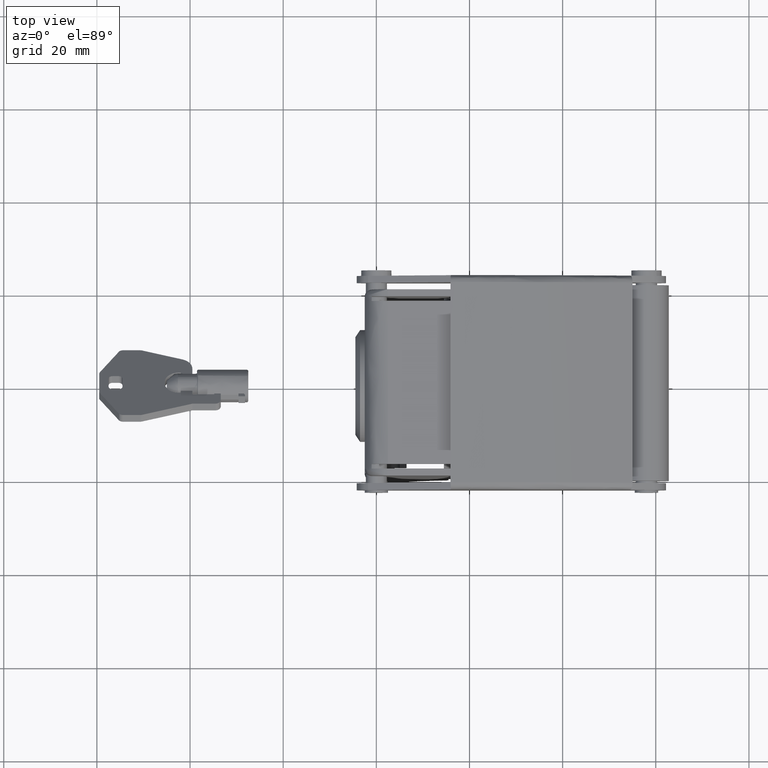
[diagram: clean part render]
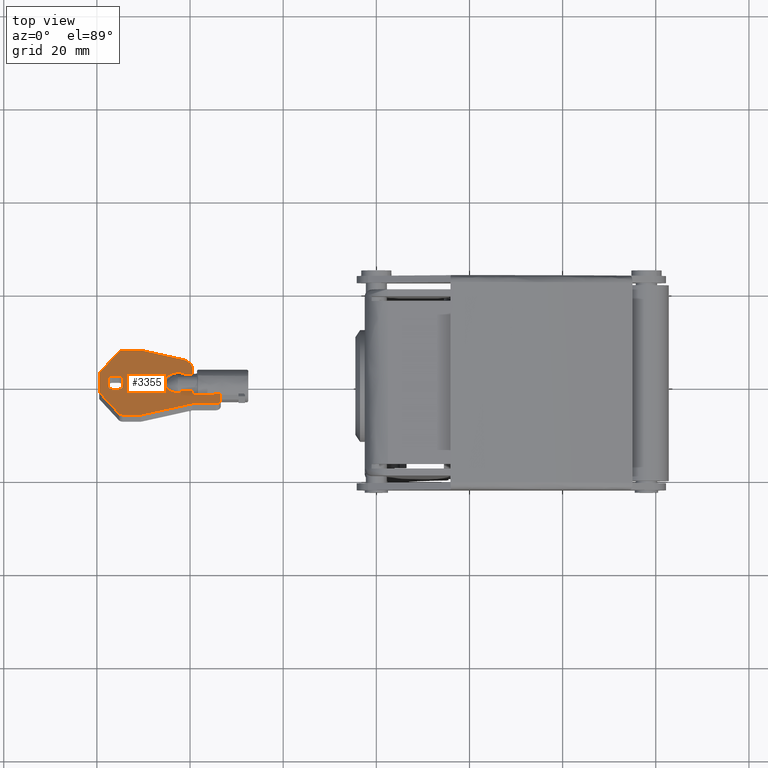
[diagram: same view with one face highlighted and labeled with its STEP entity id]
A machine part, top view. The second image highlights one B-rep face of the part: STEP entity #3355.
In plain terms, the highlighted face is a freeform B-spline surface patch.
Its self-contained STEP definition (entity closure, byte-faithful):
#1591=CARTESIAN_POINT('',(-41.997997487522753,2.480520734108946,-35.366299757103349));
#1592=VERTEX_POINT('',#1591);
#1593=CARTESIAN_POINT('',(-39.497997487522703,2.480520734108993,-35.366299757103299));
#1594=VERTEX_POINT('',#1593);
#1595=CARTESIAN_POINT('',(-41.997997487522753,2.480520734108946,-35.366299757103349));
#1596=CARTESIAN_POINT('',(-39.497997487522703,2.480520734108993,-35.366299757103299));
#1597=QUASI_UNIFORM_CURVE('',1,(#1595,#1596),.UNSPECIFIED.,.F.,.U.);
#1598=EDGE_CURVE('',#1592,#1594,#1597,.T.);
#1664=CARTESIAN_POINT('',(-39.497997487522703,-1.066308775221312,-31.819470247773090));
#1665=VERTEX_POINT('',#1664);
#1666=CARTESIAN_POINT('',(-41.997997487522753,-1.066308775221266,-31.819470247773040));
#1667=VERTEX_POINT('',#1666);
#1668=CARTESIAN_POINT('',(-39.497997487522703,-1.066308775221312,-31.819470247773090));
#1669=CARTESIAN_POINT('',(-41.997997487522753,-1.066308775221266,-31.819470247773040));
#1670=QUASI_UNIFORM_CURVE('',1,(#1668,#1669),.UNSPECIFIED.,.F.,.U.);
#1671=EDGE_CURVE('',#1665,#1667,#1670,.T.);
#1782=CARTESIAN_POINT('',(-33.397997487522659,-1.664602224938129,-31.221176798056270));
#1783=VERTEX_POINT('',#1782);
#1784=CARTESIAN_POINT('',(-34.797997487522700,-1.664602224938129,-31.221176798056270));
#1785=VERTEX_POINT('',#1784);
#1786=CARTESIAN_POINT('',(-33.397997487522659,-1.664602224938129,-31.221176798056270));
#1787=CARTESIAN_POINT('',(-34.797997487522700,-1.664602224938129,-31.221176798056270));
#1788=QUASI_UNIFORM_CURVE('',1,(#1786,#1787),.UNSPECIFIED.,.F.,.U.);
#1789=EDGE_CURVE('',#1783,#1785,#1788,.T.);
#2265=CARTESIAN_POINT('',(-57.497997487522753,1.555634102437374,-34.441413125431772));
#2266=VERTEX_POINT('',#2265);
#2267=CARTESIAN_POINT('',(-56.697997487522763,2.121319517705285,-35.007098540699737));
#2268=VERTEX_POINT('',#2267);
#2269=CARTESIAN_POINT('',(-57.497997487522760,1.555634102437374,-34.441413125431772));
#2270=CARTESIAN_POINT('',(-57.497997487522767,2.121319517705317,-35.007098540699715));
#2271=CARTESIAN_POINT('',(-56.697997487522763,2.121319517705317,-35.007098540699722));
#2279=(BOUNDED_CURVE()B_SPLINE_CURVE(2,(#2269,#2270,#2271),.UNSPECIFIED.,.F.,.U.)CURVE()GEOMETRIC_REPRESENTATION_ITEM()QUASI_UNIFORM_CURVE()RATIONAL_B_SPLINE_CURVE((1.0,0.707106781186548,1.0))REPRESENTATION_ITEM(''));
#2280=EDGE_CURVE('',#2266,#2268,#2279,.T.);
#2301=CARTESIAN_POINT('',(-57.497997487522753,-0.141422143366427,-32.744356879627972));
#2302=VERTEX_POINT('',#2301);
#2303=CARTESIAN_POINT('',(-57.497997487522753,-0.141422143366427,-32.744356879627972));
#2304=CARTESIAN_POINT('',(-57.497997487522753,1.555634102437374,-34.441413125431772));
#2305=QUASI_UNIFORM_CURVE('',1,(#2303,#2304),.UNSPECIFIED.,.F.,.U.);
#2306=EDGE_CURVE('',#2302,#2266,#2305,.T.);
#2332=CARTESIAN_POINT('',(-56.697997487522763,-0.707107558634366,-32.178671464360043));
#2333=VERTEX_POINT('',#2332);
#2334=CARTESIAN_POINT('',(-56.697997487522763,-0.707107558634370,-32.178671464360029));
#2335=CARTESIAN_POINT('',(-57.497997487522767,-0.707107558634370,-32.178671464360029));
#2336=CARTESIAN_POINT('',(-57.497997487522760,-0.141422143366427,-32.744356879627972));
#2344=(BOUNDED_CURVE()B_SPLINE_CURVE(2,(#2334,#2335,#2336),.UNSPECIFIED.,.F.,.U.)CURVE()GEOMETRIC_REPRESENTATION_ITEM()QUASI_UNIFORM_CURVE()RATIONAL_B_SPLINE_CURVE((1.0,0.707106781186548,1.0))REPRESENTATION_ITEM(''));
#2345=EDGE_CURVE('',#2333,#2302,#2344,.T.);
#2362=CARTESIAN_POINT('',(-55.297997487522700,-0.707107558634366,-32.178671464360043));
#2363=VERTEX_POINT('',#2362);
#2364=CARTESIAN_POINT('',(-55.297997487522700,-0.707107558634366,-32.178671464360043));
#2365=CARTESIAN_POINT('',(-56.697997487522763,-0.707107558634366,-32.178671464360043));
#2366=QUASI_UNIFORM_CURVE('',1,(#2364,#2365),.UNSPECIFIED.,.F.,.U.);
#2367=EDGE_CURVE('',#2363,#2333,#2366,.T.);
#2393=CARTESIAN_POINT('',(-54.497997487522753,-0.141422143366427,-32.744356879627972));
#2394=VERTEX_POINT('',#2393);
#2395=CARTESIAN_POINT('',(-54.497997487522703,-0.141422143366427,-32.744356879627972));
#2396=CARTESIAN_POINT('',(-54.497997487522689,-0.707107558634370,-32.178671464360029));
#2397=CARTESIAN_POINT('',(-55.297997487522700,-0.707107558634370,-32.178671464360029));
#2405=(BOUNDED_CURVE()B_SPLINE_CURVE(2,(#2395,#2396,#2397),.UNSPECIFIED.,.F.,.U.)CURVE()GEOMETRIC_REPRESENTATION_ITEM()QUASI_UNIFORM_CURVE()RATIONAL_B_SPLINE_CURVE((1.0,0.707106781186548,1.0))REPRESENTATION_ITEM(''));
#2406=EDGE_CURVE('',#2394,#2363,#2405,.T.);
#2423=CARTESIAN_POINT('',(-54.497997487522703,1.555634102437374,-34.441413125431772));
#2424=VERTEX_POINT('',#2423);
#2425=CARTESIAN_POINT('',(-54.497997487522703,1.555634102437374,-34.441413125431772));
#2426=CARTESIAN_POINT('',(-54.497997487522753,-0.141422143366427,-32.744356879627972));
#2427=QUASI_UNIFORM_CURVE('',1,(#2425,#2426),.UNSPECIFIED.,.F.,.U.);
#2428=EDGE_CURVE('',#2424,#2394,#2427,.T.);
#2454=CARTESIAN_POINT('',(-55.297997487522700,2.121319517705317,-35.007098540699722));
#2455=VERTEX_POINT('',#2454);
#2456=CARTESIAN_POINT('',(-55.297997487522700,2.121319517705317,-35.007098540699722));
#2457=CARTESIAN_POINT('',(-54.497997487522689,2.121319517705317,-35.007098540699715));
#2458=CARTESIAN_POINT('',(-54.497997487522703,1.555634102437374,-34.441413125431772));
#2466=(BOUNDED_CURVE()B_SPLINE_CURVE(2,(#2456,#2457,#2458),.UNSPECIFIED.,.F.,.U.)CURVE()GEOMETRIC_REPRESENTATION_ITEM()QUASI_UNIFORM_CURVE()RATIONAL_B_SPLINE_CURVE((1.0,0.707106781186548,1.0))REPRESENTATION_ITEM(''));
#2467=EDGE_CURVE('',#2455,#2424,#2466,.T.);
#2484=CARTESIAN_POINT('',(-56.697997487522763,2.121319517705285,-35.007098540699737));
#2485=CARTESIAN_POINT('',(-55.297997487522700,2.121319517705317,-35.007098540699722));
#2486=QUASI_UNIFORM_CURVE('',1,(#2484,#2485),.UNSPECIFIED.,.F.,.U.);
#2487=EDGE_CURVE('',#2268,#2455,#2486,.T.);
#2500=CARTESIAN_POINT('',(-41.997997487522753,-1.484925004627712,-31.400854018366591));
#2501=VERTEX_POINT('',#2500);
#2502=CARTESIAN_POINT('',(-41.997997487522753,-1.484925004627712,-31.400854018366591));
#2503=CARTESIAN_POINT('',(-41.997997487522753,-1.066308775221266,-31.819470247773040));
#2504=QUASI_UNIFORM_CURVE('',1,(#2502,#2503),.UNSPECIFIED.,.F.,.U.);
#2505=EDGE_CURVE('',#2501,#1667,#2504,.T.);
#2524=CARTESIAN_POINT('',(-41.997997487522753,2.899136963698759,-35.784915986693072));
#2525=VERTEX_POINT('',#2524);
#2526=CARTESIAN_POINT('',(-41.997997487522753,2.480520734108946,-35.366299757103349));
#2527=CARTESIAN_POINT('',(-41.997997487522753,2.899136963698759,-35.784915986693072));
#2528=QUASI_UNIFORM_CURVE('',1,(#2526,#2527),.UNSPECIFIED.,.F.,.U.);
#2529=EDGE_CURVE('',#1592,#2525,#2528,.T.);
#2544=CARTESIAN_POINT('',(-39.497997487522703,3.752152698451376,-36.637931721445682));
#2545=VERTEX_POINT('',#2544);
#2546=CARTESIAN_POINT('',(-39.497997487522703,3.752152698451376,-36.637931721445682));
#2547=CARTESIAN_POINT('',(-39.497997487522703,2.480520734108993,-35.366299757103299));
#2548=QUASI_UNIFORM_CURVE('',1,(#2546,#2547),.UNSPECIFIED.,.F.,.U.);
#2549=EDGE_CURVE('',#2545,#1594,#2548,.T.);
#2568=CARTESIAN_POINT('',(-39.497997487522703,-1.697057035353293,-31.188721987641010));
#2569=VERTEX_POINT('',#2568);
#2570=CARTESIAN_POINT('',(-39.497997487522703,-1.066308775221312,-31.819470247773090));
#2571=CARTESIAN_POINT('',(-39.497997487522703,-1.697057035353293,-31.188721987641010));
#2572=QUASI_UNIFORM_CURVE('',1,(#2570,#2571),.UNSPECIFIED.,.F.,.U.);
#2573=EDGE_CURVE('',#1665,#2569,#2572,.T.);
#2588=CARTESIAN_POINT('',(-34.797997487522700,-1.838478389170241,-31.047300633824069));
#2589=VERTEX_POINT('',#2588);
#2590=CARTESIAN_POINT('',(-34.797997487522700,-1.838478389170241,-31.047300633824069));
#2591=CARTESIAN_POINT('',(-34.797997487522700,-1.664602224938129,-31.221176798056270));
#2592=QUASI_UNIFORM_CURVE('',1,(#2590,#2591),.UNSPECIFIED.,.F.,.U.);
#2593=EDGE_CURVE('',#2589,#1785,#2592,.T.);
#2616=CARTESIAN_POINT('',(-33.397997487522659,-3.040559896614621,-29.845219126379689));
#2617=VERTEX_POINT('',#2616);
#2618=CARTESIAN_POINT('',(-33.397997487522659,-1.664602224938129,-31.221176798056270));
#2619=CARTESIAN_POINT('',(-33.397997487522659,-3.040559896614621,-29.845219126379689));
#2620=QUASI_UNIFORM_CURVE('',1,(#2618,#2619),.UNSPECIFIED.,.F.,.U.);
#2621=EDGE_CURVE('',#1783,#2617,#2620,.T.);
#2645=CARTESIAN_POINT('',(-45.397997487522701,1.272791394803484,-34.158570417797790));
#2646=VERTEX_POINT('',#2645);
#2647=CARTESIAN_POINT('',(-42.403001661148302,2.899136963698759,-35.784915986693072));
#2648=VERTEX_POINT('',#2647);
#2649=CARTESIAN_POINT('',(-45.397997487522687,1.272791394803484,-34.158570417797790));
#2650=CARTESIAN_POINT('',(-44.783639369292040,2.899136963698822,-35.784915986693129));
#2651=CARTESIAN_POINT('',(-42.403001661148302,2.899136963698823,-35.784915986693129));
#2659=(BOUNDED_CURVE()B_SPLINE_CURVE(2,(#2649,#2650,#2651),.UNSPECIFIED.,.F.,.U.)CURVE()GEOMETRIC_REPRESENTATION_ITEM()QUASI_UNIFORM_CURVE()RATIONAL_B_SPLINE_CURVE((1.0,0.793115538912532,1.0))REPRESENTATION_ITEM(''));
#2660=EDGE_CURVE('',#2646,#2648,#2659,.T.);
#2681=CARTESIAN_POINT('',(-45.397997487522701,0.141420564267595,-33.027199587261897));
#2682=VERTEX_POINT('',#2681);
#2683=CARTESIAN_POINT('',(-45.397997487522701,1.272791394803484,-34.158570417797790));
#2684=CARTESIAN_POINT('',(-45.397997487522701,0.141420564267595,-33.027199587261897));
#2685=QUASI_UNIFORM_CURVE('',1,(#2683,#2684),.UNSPECIFIED.,.F.,.U.);
#2686=EDGE_CURVE('',#2646,#2682,#2685,.T.);
#2712=CARTESIAN_POINT('',(-42.403001661148302,-1.484925004627744,-31.400854018366559));
#2713=VERTEX_POINT('',#2712);
#2714=CARTESIAN_POINT('',(-42.403001661148302,-1.484925004627748,-31.400854018366559));
#2715=CARTESIAN_POINT('',(-44.783639369292047,-1.484925004627747,-31.400854018366555));
#2716=CARTESIAN_POINT('',(-45.397997487522687,0.141420564267595,-33.027199587261897));
#2724=(BOUNDED_CURVE()B_SPLINE_CURVE(2,(#2714,#2715,#2716),.UNSPECIFIED.,.F.,.U.)CURVE()GEOMETRIC_REPRESENTATION_ITEM()QUASI_UNIFORM_CURVE()RATIONAL_B_SPLINE_CURVE((1.0,0.793115538912532,1.0))REPRESENTATION_ITEM(''));
#2725=EDGE_CURVE('',#2713,#2682,#2724,.T.);
#2742=CARTESIAN_POINT('',(-42.403001661148302,-1.484925004627744,-31.400854018366559));
#2743=CARTESIAN_POINT('',(-41.997997487522753,-1.484925004627712,-31.400854018366591));
#2744=QUASI_UNIFORM_CURVE('',1,(#2742,#2743),.UNSPECIFIED.,.F.,.U.);
#2745=EDGE_CURVE('',#2713,#2501,#2744,.T.);
#2758=CARTESIAN_POINT('',(-50.350049938992953,7.744887170782789,-40.630666193777103));
#2759=VERTEX_POINT('',#2758);
#2760=CARTESIAN_POINT('',(-41.588386515691852,5.773613506900098,-38.659392529894397));
#2761=VERTEX_POINT('',#2760);
#2762=CARTESIAN_POINT('',(-50.350049938992953,7.744887170782789,-40.630666193777103));
#2763=CARTESIAN_POINT('',(-41.588386515691852,5.773613506900098,-38.659392529894397));
#2764=QUASI_UNIFORM_CURVE('',1,(#2762,#2763),.UNSPECIFIED.,.F.,.U.);
#2765=EDGE_CURVE('',#2759,#2761,#2764,.T.);
#2795=CARTESIAN_POINT('',(-41.588386515691852,5.773613506900105,-38.659392529894411));
#2796=CARTESIAN_POINT('',(-39.497997487522753,5.303299978587589,-38.189079001581902));
#2797=CARTESIAN_POINT('',(-39.497997487522753,3.752152698451376,-36.637931721445682));
#2805=(BOUNDED_CURVE()B_SPLINE_CURVE(2,(#2795,#2796,#2797),.UNSPECIFIED.,.F.,.U.)CURVE()GEOMETRIC_REPRESENTATION_ITEM()QUASI_UNIFORM_CURVE()RATIONAL_B_SPLINE_CURVE((1.0,0.807218575503862,1.0))REPRESENTATION_ITEM(''));
#2806=EDGE_CURVE('',#2761,#2545,#2805,.T.);
#2828=CARTESIAN_POINT('',(-39.297997487522700,-1.838478389170280,-31.047300633824030));
#2829=VERTEX_POINT('',#2828);
#2830=CARTESIAN_POINT('',(-39.297997487522700,-1.838478389170280,-31.047300633824030));
#2831=CARTESIAN_POINT('',(-39.497997487522703,-1.838478389170281,-31.047300633824019));
#2832=CARTESIAN_POINT('',(-39.497997487522703,-1.697057035353293,-31.188721987641010));
#2840=(BOUNDED_CURVE()B_SPLINE_CURVE(2,(#2830,#2831,#2832),.UNSPECIFIED.,.F.,.U.)CURVE()GEOMETRIC_REPRESENTATION_ITEM()QUASI_UNIFORM_CURVE()RATIONAL_B_SPLINE_CURVE((1.0,0.707106781186548,1.0))REPRESENTATION_ITEM(''));
#2841=EDGE_CURVE('',#2829,#2569,#2840,.T.);
#2858=CARTESIAN_POINT('',(-39.297997487522700,-1.838478389170280,-31.047300633824030));
#2859=CARTESIAN_POINT('',(-34.797997487522700,-1.838478389170241,-31.047300633824069));
#2860=QUASI_UNIFORM_CURVE('',1,(#2858,#2859),.UNSPECIFIED.,.F.,.U.);
#2861=EDGE_CURVE('',#2829,#2589,#2860,.T.);
#2883=CARTESIAN_POINT('',(-34.597997487522697,-3.889088019516542,-28.996691003477761));
#2884=VERTEX_POINT('',#2883);
#2885=CARTESIAN_POINT('',(-33.397997487522701,-3.040559896614621,-29.845219126379689));
#2886=CARTESIAN_POINT('',(-33.397997487522709,-3.889088019516542,-28.996691003477764));
#2887=CARTESIAN_POINT('',(-34.597997487522697,-3.889088019516542,-28.996691003477761));
#2895=(BOUNDED_CURVE()B_SPLINE_CURVE(2,(#2885,#2886,#2887),.UNSPECIFIED.,.F.,.U.)CURVE()GEOMETRIC_REPRESENTATION_ITEM()QUASI_UNIFORM_CURVE()RATIONAL_B_SPLINE_CURVE((1.0,0.707106781186547,1.0))REPRESENTATION_ITEM(''));
#2896=EDGE_CURVE('',#2617,#2884,#2895,.T.);
#2913=CARTESIAN_POINT('',(-39.497997487522703,-3.889088019516507,-28.996691003477800));
#2914=VERTEX_POINT('',#2913);
#2915=CARTESIAN_POINT('',(-34.597997487522697,-3.889088019516542,-28.996691003477761));
#2916=CARTESIAN_POINT('',(-39.497997487522703,-3.889088019516507,-28.996691003477800));
#2917=QUASI_UNIFORM_CURVE('',1,(#2915,#2916),.UNSPECIFIED.,.F.,.U.);
#2918=EDGE_CURVE('',#2884,#2914,#2917,.T.);
#2935=CARTESIAN_POINT('',(-50.350049938992953,-6.330675211711810,-26.555103811282500));
#2936=VERTEX_POINT('',#2935);
#2937=CARTESIAN_POINT('',(-39.497997487522703,-3.889088019516507,-28.996691003477800));
#2938=CARTESIAN_POINT('',(-50.350049938992953,-6.330675211711810,-26.555103811282500));
#2939=QUASI_UNIFORM_CURVE('',1,(#2937,#2938),.UNSPECIFIED.,.F.,.U.);
#2940=EDGE_CURVE('',#2914,#2936,#2939,.T.);
#2966=CARTESIAN_POINT('',(-50.653253596269899,-6.363961711313799,-26.521817311680511));
#2967=VERTEX_POINT('',#2966);
#2968=CARTESIAN_POINT('',(-50.350049938992960,-6.330675211711785,-26.555103811282521));
#2969=CARTESIAN_POINT('',(-50.497997487522710,-6.363961711313799,-26.521817311680511));
#2970=CARTESIAN_POINT('',(-50.653253596269899,-6.363961711313799,-26.521817311680511));
#2978=(BOUNDED_CURVE()B_SPLINE_CURVE(2,(#2968,#2969,#2970),.UNSPECIFIED.,.F.,.U.)CURVE()GEOMETRIC_REPRESENTATION_ITEM()QUASI_UNIFORM_CURVE()RATIONAL_B_SPLINE_CURVE((1.0,0.988161368404286,1.0))REPRESENTATION_ITEM(''));
#2979=EDGE_CURVE('',#2936,#2967,#2978,.T.);
#2996=CARTESIAN_POINT('',(-54.452046274873112,-6.363961711313763,-26.521817311680540));
#2997=VERTEX_POINT('',#2996);
#2998=CARTESIAN_POINT('',(-50.653253596269899,-6.363961711313799,-26.521817311680511));
#2999=CARTESIAN_POINT('',(-54.452046274873112,-6.363961711313763,-26.521817311680540));
#3000=QUASI_UNIFORM_CURVE('',1,(#2998,#2999),.UNSPECIFIED.,.F.,.U.);
#3001=EDGE_CURVE('',#2967,#2997,#3000,.T.);
#3027=CARTESIAN_POINT('',(-55.293224750249699,-6.039228295480704,-26.846550727513598));
#3028=VERTEX_POINT('',#3027);
#3029=CARTESIAN_POINT('',(-54.452046274873112,-6.363961711313799,-26.521817311680511));
#3030=CARTESIAN_POINT('',(-54.997997487522639,-6.363961711313799,-26.521817311680511));
#3031=CARTESIAN_POINT('',(-55.293224750249657,-6.039228295480690,-26.846550727513620));
#3039=(BOUNDED_CURVE()B_SPLINE_CURVE(2,(#3029,#3030,#3031),.UNSPECIFIED.,.F.,.U.)CURVE()GEOMETRIC_REPRESENTATION_ITEM()QUASI_UNIFORM_CURVE()RATIONAL_B_SPLINE_CURVE((1.0,0.877712251057680,1.0))REPRESENTATION_ITEM(''));
#3040=EDGE_CURVE('',#2997,#3028,#3039,.T.);
#3057=CARTESIAN_POINT('',(-59.339175962899247,-1.588909089044552,-31.296869933949750));
#3058=VERTEX_POINT('',#3057);
#3059=CARTESIAN_POINT('',(-55.293224750249699,-6.039228295480704,-26.846550727513598));
#3060=CARTESIAN_POINT('',(-59.339175962899247,-1.588909089044552,-31.296869933949750));
#3061=QUASI_UNIFORM_CURVE('',1,(#3059,#3060),.UNSPECIFIED.,.F.,.U.);
#3062=EDGE_CURVE('',#3028,#3058,#3061,.T.);
#3088=CARTESIAN_POINT('',(-59.497997487522753,-1.206535735792574,-31.679243287201729));
#3089=VERTEX_POINT('',#3088);
#3090=CARTESIAN_POINT('',(-59.339175962899198,-1.588909089044531,-31.296869933949779));
#3091=CARTESIAN_POINT('',(-59.497997487522760,-1.414214327719286,-31.471564695275021));
#3092=CARTESIAN_POINT('',(-59.497997487522753,-1.206535735792574,-31.679243287201729));
#3100=(BOUNDED_CURVE()B_SPLINE_CURVE(2,(#3090,#3091,#3092),.UNSPECIFIED.,.F.,.U.)CURVE()GEOMETRIC_REPRESENTATION_ITEM()QUASI_UNIFORM_CURVE()RATIONAL_B_SPLINE_CURVE((1.0,0.959473416874185,1.0))REPRESENTATION_ITEM(''));
#3101=EDGE_CURVE('',#3058,#3089,#3100,.T.);
#3118=CARTESIAN_POINT('',(-59.497997487522753,2.620747694863727,-35.506526717858037));
#3119=VERTEX_POINT('',#3118);
#3120=CARTESIAN_POINT('',(-59.497997487522753,-1.206535735792574,-31.679243287201729));
#3121=CARTESIAN_POINT('',(-59.497997487522753,2.620747694863727,-35.506526717858037));
#3122=QUASI_UNIFORM_CURVE('',1,(#3120,#3121),.UNSPECIFIED.,.F.,.U.);
#3123=EDGE_CURVE('',#3089,#3119,#3122,.T.);
#3149=CARTESIAN_POINT('',(-59.339175962899297,3.003121048115524,-35.888900071109830));
#3150=VERTEX_POINT('',#3149);
#3151=CARTESIAN_POINT('',(-59.497997487522753,2.620747694863727,-35.506526717858037));
#3152=CARTESIAN_POINT('',(-59.497997487522753,2.828426286790347,-35.714205309784653));
#3153=CARTESIAN_POINT('',(-59.339175962899333,3.003121048115535,-35.888900071109852));
#3161=(BOUNDED_CURVE()B_SPLINE_CURVE(2,(#3151,#3152,#3153),.UNSPECIFIED.,.F.,.U.)CURVE()GEOMETRIC_REPRESENTATION_ITEM()QUASI_UNIFORM_CURVE()RATIONAL_B_SPLINE_CURVE((1.0,0.959473416874219,1.0))REPRESENTATION_ITEM(''));
#3162=EDGE_CURVE('',#3119,#3150,#3161,.T.);
#3179=CARTESIAN_POINT('',(-55.293224750249699,7.453440254551719,-40.339219277546022));
#3180=VERTEX_POINT('',#3179);
#3181=CARTESIAN_POINT('',(-59.339175962899297,3.003121048115524,-35.888900071109830));
#3182=CARTESIAN_POINT('',(-55.293224750249699,7.453440254551719,-40.339219277546022));
#3183=QUASI_UNIFORM_CURVE('',1,(#3181,#3182),.UNSPECIFIED.,.F.,.U.);
#3184=EDGE_CURVE('',#3150,#3180,#3183,.T.);
#3210=CARTESIAN_POINT('',(-54.452046274873247,7.778173670384810,-40.663952693379123));
#3211=VERTEX_POINT('',#3210);
#3212=CARTESIAN_POINT('',(-55.293224750249777,7.453440254551754,-40.339219277546057));
#3213=CARTESIAN_POINT('',(-54.997997487522731,7.778173670384810,-40.663952693379116));
#3214=CARTESIAN_POINT('',(-54.452046274873247,7.778173670384810,-40.663952693379123));
#3222=(BOUNDED_CURVE()B_SPLINE_CURVE(2,(#3212,#3213,#3214),.UNSPECIFIED.,.F.,.U.)CURVE()GEOMETRIC_REPRESENTATION_ITEM()QUASI_UNIFORM_CURVE()RATIONAL_B_SPLINE_CURVE((1.0,0.877712251057701,1.0))REPRESENTATION_ITEM(''));
#3223=EDGE_CURVE('',#3180,#3211,#3222,.T.);
#3240=CARTESIAN_POINT('',(-50.653253596269899,7.778173670384810,-40.663952693379123));
#3241=VERTEX_POINT('',#3240);
#3242=CARTESIAN_POINT('',(-54.452046274873247,7.778173670384810,-40.663952693379123));
#3243=CARTESIAN_POINT('',(-50.653253596269899,7.778173670384810,-40.663952693379123));
#3244=QUASI_UNIFORM_CURVE('',1,(#3242,#3243),.UNSPECIFIED.,.F.,.U.);
#3245=EDGE_CURVE('',#3211,#3241,#3244,.T.);
#3271=CARTESIAN_POINT('',(-50.653253596269899,7.778173670384810,-40.663952693379123));
#3272=CARTESIAN_POINT('',(-50.497997487522696,7.778173670384810,-40.663952693379109));
#3273=CARTESIAN_POINT('',(-50.350049938992953,7.744887170782793,-40.630666193777103));
#3281=(BOUNDED_CURVE()B_SPLINE_CURVE(2,(#3271,#3272,#3273),.UNSPECIFIED.,.F.,.U.)CURVE()GEOMETRIC_REPRESENTATION_ITEM()QUASI_UNIFORM_CURVE()RATIONAL_B_SPLINE_CURVE((1.0,0.988161368404285,1.0))REPRESENTATION_ITEM(''));
#3282=EDGE_CURVE('',#3241,#2759,#3281,.T.);
#3295=CARTESIAN_POINT('',(-41.997997487522753,2.899136963698759,-35.784915986693072));
#3296=CARTESIAN_POINT('',(-42.403001661148302,2.899136963698759,-35.784915986693072));
#3297=QUASI_UNIFORM_CURVE('',1,(#3295,#3296),.UNSPECIFIED.,.F.,.U.);
#3298=EDGE_CURVE('',#2525,#2648,#3297,.T.);
#3306=CARTESIAN_POINT('',(-60.801692436935888,8.484573305290404,-41.370352328284802));
#3307=CARTESIAN_POINT('',(-32.094301838052957,8.484573305290404,-41.370352328284802));
#3308=CARTESIAN_POINT('',(-60.801692436935888,-7.070361725541115,-25.815417297453291));
#3309=CARTESIAN_POINT('',(-32.094301838052957,-7.070361725541115,-25.815417297453291));
#3310=B_SPLINE_SURFACE_WITH_KNOTS('',1,1,((#3306,#3308),(#3307,#3309)),.UNSPECIFIED.,.F.,.F.,.U.,(2,2),(2,2),(0.0,28.707390598882920),(0.0,21.998000458914039),.UNSPECIFIED.);
#3311=ORIENTED_EDGE('',*,*,#2573,.F.);
#3312=ORIENTED_EDGE('',*,*,#1671,.T.);
#3313=ORIENTED_EDGE('',*,*,#2505,.F.);
#3314=ORIENTED_EDGE('',*,*,#2745,.F.);
#3315=ORIENTED_EDGE('',*,*,#2725,.T.);
#3316=ORIENTED_EDGE('',*,*,#2686,.F.);
#3317=ORIENTED_EDGE('',*,*,#2660,.T.);
#3318=ORIENTED_EDGE('',*,*,#3298,.F.);
#3319=ORIENTED_EDGE('',*,*,#2529,.F.);
#3320=ORIENTED_EDGE('',*,*,#1598,.T.);
#3321=ORIENTED_EDGE('',*,*,#2549,.F.);
#3322=ORIENTED_EDGE('',*,*,#2806,.F.);
#3323=ORIENTED_EDGE('',*,*,#2765,.F.);
#3324=ORIENTED_EDGE('',*,*,#3282,.F.);
#3325=ORIENTED_EDGE('',*,*,#3245,.F.);
#3326=ORIENTED_EDGE('',*,*,#3223,.F.);
#3327=ORIENTED_EDGE('',*,*,#3184,.F.);
#3328=ORIENTED_EDGE('',*,*,#3162,.F.);
#3329=ORIENTED_EDGE('',*,*,#3123,.F.);
#3330=ORIENTED_EDGE('',*,*,#3101,.F.);
#3331=ORIENTED_EDGE('',*,*,#3062,.F.);
#3332=ORIENTED_EDGE('',*,*,#3040,.F.);
#3333=ORIENTED_EDGE('',*,*,#3001,.F.);
#3334=ORIENTED_EDGE('',*,*,#2979,.F.);
#3335=ORIENTED_EDGE('',*,*,#2940,.F.);
#3336=ORIENTED_EDGE('',*,*,#2918,.F.);
#3337=ORIENTED_EDGE('',*,*,#2896,.F.);
#3338=ORIENTED_EDGE('',*,*,#2621,.F.);
#3339=ORIENTED_EDGE('',*,*,#1789,.T.);
#3340=ORIENTED_EDGE('',*,*,#2593,.F.);
#3341=ORIENTED_EDGE('',*,*,#2861,.F.);
#3342=ORIENTED_EDGE('',*,*,#2841,.T.);
#3343=EDGE_LOOP('',(#3311,#3312,#3313,#3314,#3315,#3316,#3317,#3318,#3319,#3320,#3321,#3322,#3323,#3324,#3325,#3326,#3327,#3328,#3329,#3330,#3331,#3332,#3333,#3334,#3335,#3336,#3337,#3338,#3339,#3340,#3341,#3342));
#3344=FACE_OUTER_BOUND('',#3343,.T.);
#3345=ORIENTED_EDGE('',*,*,#2487,.T.);
#3346=ORIENTED_EDGE('',*,*,#2467,.T.);
#3347=ORIENTED_EDGE('',*,*,#2428,.T.);
#3348=ORIENTED_EDGE('',*,*,#2406,.T.);
#3349=ORIENTED_EDGE('',*,*,#2367,.T.);
#3350=ORIENTED_EDGE('',*,*,#2345,.T.);
#3351=ORIENTED_EDGE('',*,*,#2306,.T.);
#3352=ORIENTED_EDGE('',*,*,#2280,.T.);
#3353=EDGE_LOOP('',(#3345,#3346,#3347,#3348,#3349,#3350,#3351,#3352));
#3354=FACE_BOUND('',#3353,.T.);
#3355=ADVANCED_FACE('',(#3344,#3354),#3310,.F.);